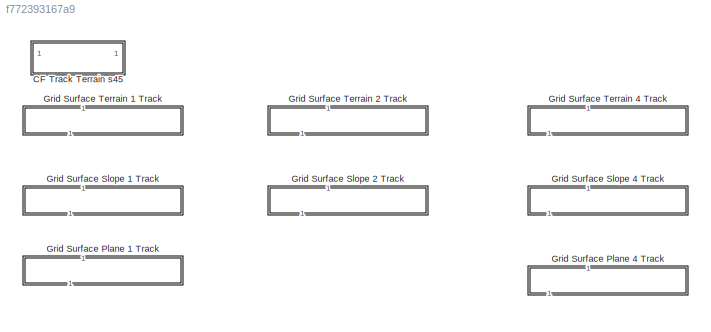
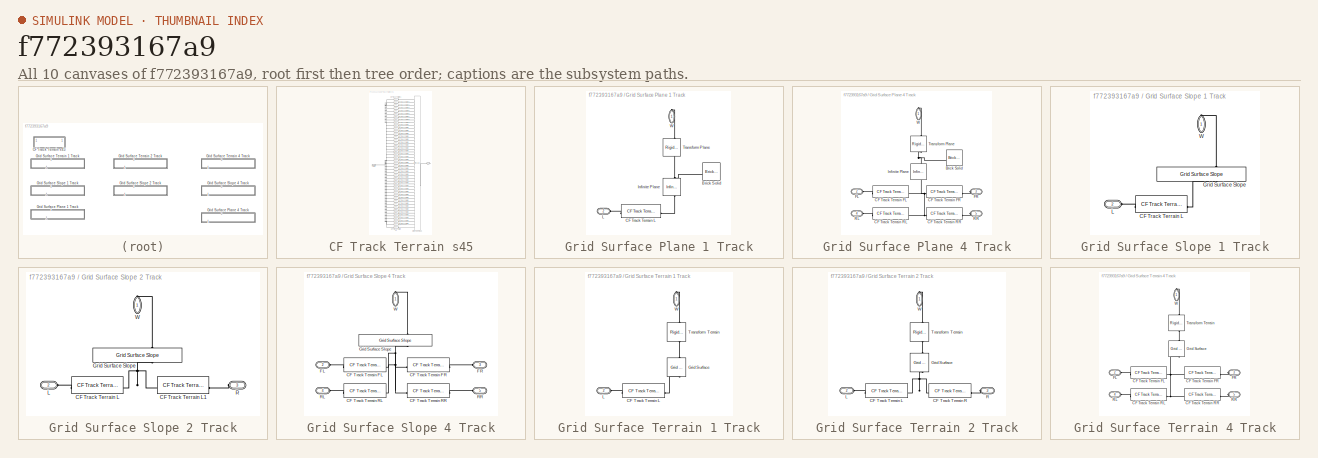
[diagram: thumbnail index - all 10 canvases of the model, root first then tree order]
MODEL slx_f772393167a9
KIND library
CONFIG SolverName = VariableStepAuto
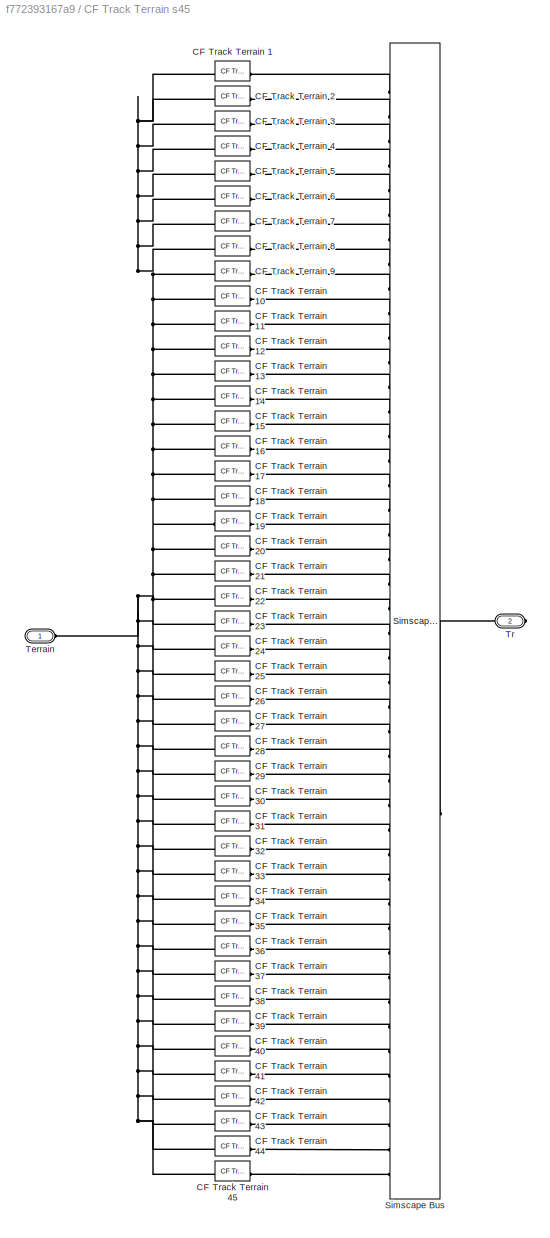
BLOCK [SubSystem] CF Track Terrain s45
BLOCK [Reference] CF Track Terrain s45/CF Track Terrain 1  REF=sm_trackV_lib_terrain_contact_elem/CF Track Terrain
  LibrarySourceBlock = sm_chain_drive_lib/CF_Road
  NameLocation = right
  SourceBlock = sm_trackV_lib_terrain_contact_elem/CF Track Terrain
  SourceType = Contact Force, Track Segment to Terrain
BLOCK [Reference] CF Track Terrain s45/CF Track Terrain 10  REF=sm_trackV_lib_terrain_contact_elem/CF Track Terrain
  LibrarySourceBlock = sm_chain_drive_lib/CF_Road
  NameLocation = right
  SourceBlock = sm_trackV_lib_terrain_contact_elem/CF Track Terrain
  SourceType = Contact Force, Track Segment to Terrain
BLOCK [Reference] CF Track Terrain s45/CF Track Terrain 11  REF=sm_trackV_lib_terrain_contact_elem/CF Track Terrain
  LibrarySourceBlock = sm_chain_drive_lib/CF_Road
  NameLocation = right
  SourceBlock = sm_trackV_lib_terrain_contact_elem/CF Track Terrain
  SourceType = Contact Force, Track Segment to Terrain
BLOCK [Reference] CF Track Terrain s45/CF Track Terrain 12  REF=sm_trackV_lib_terrain_contact_elem/CF Track Terrain
  LibrarySourceBlock = sm_chain_drive_lib/CF_Road
  NameLocation = right
  SourceBlock = sm_trackV_lib_terrain_contact_elem/CF Track Terrain
  SourceType = Contact Force, Track Segment to Terrain
BLOCK [Reference] CF Track Terrain s45/CF Track Terrain 13  REF=sm_trackV_lib_terrain_contact_elem/CF Track Terrain
  LibrarySourceBlock = sm_chain_drive_lib/CF_Road
  NameLocation = right
  SourceBlock = sm_trackV_lib_terrain_contact_elem/CF Track Terrain
  SourceType = Contact Force, Track Segment to Terrain
BLOCK [Reference] CF Track Terrain s45/CF Track Terrain 14  REF=sm_trackV_lib_terrain_contact_elem/CF Track Terrain
  LibrarySourceBlock = sm_chain_drive_lib/CF_Road
  NameLocation = right
  SourceBlock = sm_trackV_lib_terrain_contact_elem/CF Track Terrain
  SourceType = Contact Force, Track Segment to Terrain
BLOCK [Reference] CF Track Terrain s45/CF Track Terrain 15  REF=sm_trackV_lib_terrain_contact_elem/CF Track Terrain
  LibrarySourceBlock = sm_chain_drive_lib/CF_Road
  NameLocation = right
  SourceBlock = sm_trackV_lib_terrain_contact_elem/CF Track Terrain
  SourceType = Contact Force, Track Segment to Terrain
BLOCK [Reference] CF Track Terrain s45/CF Track Terrain 16  REF=sm_trackV_lib_terrain_contact_elem/CF Track Terrain
  LibrarySourceBlock = sm_chain_drive_lib/CF_Road
  NameLocation = right
  SourceBlock = sm_trackV_lib_terrain_contact_elem/CF Track Terrain
  SourceType = Contact Force, Track Segment to Terrain
BLOCK [Reference] CF Track Terrain s45/CF Track Terrain 17  REF=sm_trackV_lib_terrain_contact_elem/CF Track Terrain
  LibrarySourceBlock = sm_chain_drive_lib/CF_Road
  NameLocation = right
  SourceBlock = sm_trackV_lib_terrain_contact_elem/CF Track Terrain
  SourceType = Contact Force, Track Segment to Terrain
BLOCK [Reference] CF Track Terrain s45/CF Track Terrain 18  REF=sm_trackV_lib_terrain_contact_elem/CF Track Terrain
  LibrarySourceBlock = sm_chain_drive_lib/CF_Road
  NameLocation = right
  SourceBlock = sm_trackV_lib_terrain_contact_elem/CF Track Terrain
  SourceType = Contact Force, Track Segment to Terrain
BLOCK [Reference] CF Track Terrain s45/CF Track Terrain 19  REF=sm_trackV_lib_terrain_contact_elem/CF Track Terrain
  LibrarySourceBlock = sm_chain_drive_lib/CF_Road
  NameLocation = right
  SourceBlock = sm_trackV_lib_terrain_contact_elem/CF Track Terrain
  SourceType = Contact Force, Track Segment to Terrain
BLOCK [Reference] CF Track Terrain s45/CF Track Terrain 2  REF=sm_trackV_lib_terrain_contact_elem/CF Track Terrain
  LibrarySourceBlock = sm_chain_drive_lib/CF_Road
  NameLocation = right
  SourceBlock = sm_trackV_lib_terrain_contact_elem/CF Track Terrain
  SourceType = Contact Force, Track Segment to Terrain
BLOCK [Reference] CF Track Terrain s45/CF Track Terrain 20  REF=sm_trackV_lib_terrain_contact_elem/CF Track Terrain
  LibrarySourceBlock = sm_chain_drive_lib/CF_Road
  NameLocation = right
  SourceBlock = sm_trackV_lib_terrain_contact_elem/CF Track Terrain
  SourceType = Contact Force, Track Segment to Terrain
BLOCK [Reference] CF Track Terrain s45/CF Track Terrain 21  REF=sm_trackV_lib_terrain_contact_elem/CF Track Terrain
  LibrarySourceBlock = sm_chain_drive_lib/CF_Road
  NameLocation = right
  SourceBlock = sm_trackV_lib_terrain_contact_elem/CF Track Terrain
  SourceType = Contact Force, Track Segment to Terrain
BLOCK [Reference] CF Track Terrain s45/CF Track Terrain 22  REF=sm_trackV_lib_terrain_contact_elem/CF Track Terrain
  LibrarySourceBlock = sm_chain_drive_lib/CF_Road
  NameLocation = right
  SourceBlock = sm_trackV_lib_terrain_contact_elem/CF Track Terrain
  SourceType = Contact Force, Track Segment to Terrain
BLOCK [Reference] CF Track Terrain s45/CF Track Terrain 23  REF=sm_trackV_lib_terrain_contact_elem/CF Track Terrain
  LibrarySourceBlock = sm_chain_drive_lib/CF_Road
  NameLocation = right
  SourceBlock = sm_trackV_lib_terrain_contact_elem/CF Track Terrain
  SourceType = Contact Force, Track Segment to Terrain
BLOCK [Reference] CF Track Terrain s45/CF Track Terrain 24  REF=sm_trackV_lib_terrain_contact_elem/CF Track Terrain
  LibrarySourceBlock = sm_chain_drive_lib/CF_Road
  NameLocation = right
  SourceBlock = sm_trackV_lib_terrain_contact_elem/CF Track Terrain
  SourceType = Contact Force, Track Segment to Terrain
BLOCK [Reference] CF Track Terrain s45/CF Track Terrain 25  REF=sm_trackV_lib_terrain_contact_elem/CF Track Terrain
  LibrarySourceBlock = sm_chain_drive_lib/CF_Road
  NameLocation = right
  SourceBlock = sm_trackV_lib_terrain_contact_elem/CF Track Terrain
  SourceType = Contact Force, Track Segment to Terrain
BLOCK [Reference] CF Track Terrain s45/CF Track Terrain 26  REF=sm_trackV_lib_terrain_contact_elem/CF Track Terrain
  LibrarySourceBlock = sm_chain_drive_lib/CF_Road
  NameLocation = right
  SourceBlock = sm_trackV_lib_terrain_contact_elem/CF Track Terrain
  SourceType = Contact Force, Track Segment to Terrain
BLOCK [Reference] CF Track Terrain s45/CF Track Terrain 27  REF=sm_trackV_lib_terrain_contact_elem/CF Track Terrain
  LibrarySourceBlock = sm_chain_drive_lib/CF_Road
  NameLocation = right
  SourceBlock = sm_trackV_lib_terrain_contact_elem/CF Track Terrain
  SourceType = Contact Force, Track Segment to Terrain
BLOCK [Reference] CF Track Terrain s45/CF Track Terrain 28  REF=sm_trackV_lib_terrain_contact_elem/CF Track Terrain
  LibrarySourceBlock = sm_chain_drive_lib/CF_Road
  NameLocation = right
  SourceBlock = sm_trackV_lib_terrain_contact_elem/CF Track Terrain
  SourceType = Contact Force, Track Segment to Terrain
BLOCK [Reference] CF Track Terrain s45/CF Track Terrain 29  REF=sm_trackV_lib_terrain_contact_elem/CF Track Terrain
  LibrarySourceBlock = sm_chain_drive_lib/CF_Road
  NameLocation = right
  SourceBlock = sm_trackV_lib_terrain_contact_elem/CF Track Terrain
  SourceType = Contact Force, Track Segment to Terrain
BLOCK [Reference] CF Track Terrain s45/CF Track Terrain 3  REF=sm_trackV_lib_terrain_contact_elem/CF Track Terrain
  LibrarySourceBlock = sm_chain_drive_lib/CF_Road
  NameLocation = right
  SourceBlock = sm_trackV_lib_terrain_contact_elem/CF Track Terrain
  SourceType = Contact Force, Track Segment to Terrain
BLOCK [Reference] CF Track Terrain s45/CF Track Terrain 30  REF=sm_trackV_lib_terrain_contact_elem/CF Track Terrain
  LibrarySourceBlock = sm_chain_drive_lib/CF_Road
  NameLocation = right
  SourceBlock = sm_trackV_lib_terrain_contact_elem/CF Track Terrain
  SourceType = Contact Force, Track Segment to Terrain
BLOCK [Reference] CF Track Terrain s45/CF Track Terrain 31  REF=sm_trackV_lib_terrain_contact_elem/CF Track Terrain
  LibrarySourceBlock = sm_chain_drive_lib/CF_Road
  NameLocation = right
  SourceBlock = sm_trackV_lib_terrain_contact_elem/CF Track Terrain
  SourceType = Contact Force, Track Segment to Terrain
BLOCK [Reference] CF Track Terrain s45/CF Track Terrain 32  REF=sm_trackV_lib_terrain_contact_elem/CF Track Terrain
  LibrarySourceBlock = sm_chain_drive_lib/CF_Road
  NameLocation = right
  SourceBlock = sm_trackV_lib_terrain_contact_elem/CF Track Terrain
  SourceType = Contact Force, Track Segment to Terrain
BLOCK [Reference] CF Track Terrain s45/CF Track Terrain 33  REF=sm_trackV_lib_terrain_contact_elem/CF Track Terrain
  LibrarySourceBlock = sm_chain_drive_lib/CF_Road
  NameLocation = right
  SourceBlock = sm_trackV_lib_terrain_contact_elem/CF Track Terrain
  SourceType = Contact Force, Track Segment to Terrain
BLOCK [Reference] CF Track Terrain s45/CF Track Terrain 34  REF=sm_trackV_lib_terrain_contact_elem/CF Track Terrain
  LibrarySourceBlock = sm_chain_drive_lib/CF_Road
  NameLocation = right
  SourceBlock = sm_trackV_lib_terrain_contact_elem/CF Track Terrain
  SourceType = Contact Force, Track Segment to Terrain
BLOCK [Reference] CF Track Terrain s45/CF Track Terrain 35  REF=sm_trackV_lib_terrain_contact_elem/CF Track Terrain
  LibrarySourceBlock = sm_chain_drive_lib/CF_Road
  NameLocation = right
  SourceBlock = sm_trackV_lib_terrain_contact_elem/CF Track Terrain
  SourceType = Contact Force, Track Segment to Terrain
BLOCK [Reference] CF Track Terrain s45/CF Track Terrain 36  REF=sm_trackV_lib_terrain_contact_elem/CF Track Terrain
  LibrarySourceBlock = sm_chain_drive_lib/CF_Road
  NameLocation = right
  SourceBlock = sm_trackV_lib_terrain_contact_elem/CF Track Terrain
  SourceType = Contact Force, Track Segment to Terrain
BLOCK [Reference] CF Track Terrain s45/CF Track Terrain 37  REF=sm_trackV_lib_terrain_contact_elem/CF Track Terrain
  LibrarySourceBlock = sm_chain_drive_lib/CF_Road
  NameLocation = right
  SourceBlock = sm_trackV_lib_terrain_contact_elem/CF Track Terrain
  SourceType = Contact Force, Track Segment to Terrain
BLOCK [Reference] CF Track Terrain s45/CF Track Terrain 38  REF=sm_trackV_lib_terrain_contact_elem/CF Track Terrain
  LibrarySourceBlock = sm_chain_drive_lib/CF_Road
  NameLocation = right
  SourceBlock = sm_trackV_lib_terrain_contact_elem/CF Track Terrain
  SourceType = Contact Force, Track Segment to Terrain
BLOCK [Reference] CF Track Terrain s45/CF Track Terrain 39  REF=sm_trackV_lib_terrain_contact_elem/CF Track Terrain
  LibrarySourceBlock = sm_chain_drive_lib/CF_Road
  NameLocation = right
  SourceBlock = sm_trackV_lib_terrain_contact_elem/CF Track Terrain
  SourceType = Contact Force, Track Segment to Terrain
BLOCK [Reference] CF Track Terrain s45/CF Track Terrain 4  REF=sm_trackV_lib_terrain_contact_elem/CF Track Terrain
  LibrarySourceBlock = sm_chain_drive_lib/CF_Road
  NameLocation = right
  SourceBlock = sm_trackV_lib_terrain_contact_elem/CF Track Terrain
  SourceType = Contact Force, Track Segment to Terrain
BLOCK [Reference] CF Track Terrain s45/CF Track Terrain 40  REF=sm_trackV_lib_terrain_contact_elem/CF Track Terrain
  LibrarySourceBlock = sm_chain_drive_lib/CF_Road
  NameLocation = right
  SourceBlock = sm_trackV_lib_terrain_contact_elem/CF Track Terrain
  SourceType = Contact Force, Track Segment to Terrain
BLOCK [Reference] CF Track Terrain s45/CF Track Terrain 41  REF=sm_trackV_lib_terrain_contact_elem/CF Track Terrain
  LibrarySourceBlock = sm_chain_drive_lib/CF_Road
  NameLocation = right
  SourceBlock = sm_trackV_lib_terrain_contact_elem/CF Track Terrain
  SourceType = Contact Force, Track Segment to Terrain
BLOCK [Reference] CF Track Terrain s45/CF Track Terrain 42  REF=sm_trackV_lib_terrain_contact_elem/CF Track Terrain
  LibrarySourceBlock = sm_chain_drive_lib/CF_Road
  NameLocation = right
  SourceBlock = sm_trackV_lib_terrain_contact_elem/CF Track Terrain
  SourceType = Contact Force, Track Segment to Terrain
BLOCK [Reference] CF Track Terrain s45/CF Track Terrain 43  REF=sm_trackV_lib_terrain_contact_elem/CF Track Terrain
  LibrarySourceBlock = sm_chain_drive_lib/CF_Road
  NameLocation = right
  SourceBlock = sm_trackV_lib_terrain_contact_elem/CF Track Terrain
  SourceType = Contact Force, Track Segment to Terrain
BLOCK [Reference] CF Track Terrain s45/CF Track Terrain 44  REF=sm_trackV_lib_terrain_contact_elem/CF Track Terrain
  LibrarySourceBlock = sm_chain_drive_lib/CF_Road
  NameLocation = right
  SourceBlock = sm_trackV_lib_terrain_contact_elem/CF Track Terrain
  SourceType = Contact Force, Track Segment to Terrain
BLOCK [Reference] CF Track Terrain s45/CF Track Terrain 45  REF=sm_trackV_lib_terrain_contact_elem/CF Track Terrain
  LibrarySourceBlock = sm_chain_drive_lib/CF_Road
  NameLocation = right
  SourceBlock = sm_trackV_lib_terrain_contact_elem/CF Track Terrain
  SourceType = Contact Force, Track Segment to Terrain
BLOCK [Reference] CF Track Terrain s45/CF Track Terrain 5  REF=sm_trackV_lib_terrain_contact_elem/CF Track Terrain
  LibrarySourceBlock = sm_chain_drive_lib/CF_Road
  NameLocation = right
  SourceBlock = sm_trackV_lib_terrain_contact_elem/CF Track Terrain
  SourceType = Contact Force, Track Segment to Terrain
BLOCK [Reference] CF Track Terrain s45/CF Track Terrain 6  REF=sm_trackV_lib_terrain_contact_elem/CF Track Terrain
  LibrarySourceBlock = sm_chain_drive_lib/CF_Road
  NameLocation = right
  SourceBlock = sm_trackV_lib_terrain_contact_elem/CF Track Terrain
  SourceType = Contact Force, Track Segment to Terrain
BLOCK [Reference] CF Track Terrain s45/CF Track Terrain 7  REF=sm_trackV_lib_terrain_contact_elem/CF Track Terrain
  LibrarySourceBlock = sm_chain_drive_lib/CF_Road
  NameLocation = right
  SourceBlock = sm_trackV_lib_terrain_contact_elem/CF Track Terrain
  SourceType = Contact Force, Track Segment to Terrain
BLOCK [Reference] CF Track Terrain s45/CF Track Terrain 8  REF=sm_trackV_lib_terrain_contact_elem/CF Track Terrain
  LibrarySourceBlock = sm_chain_drive_lib/CF_Road
  NameLocation = right
  SourceBlock = sm_trackV_lib_terrain_contact_elem/CF Track Terrain
  SourceType = Contact Force, Track Segment to Terrain
BLOCK [Reference] CF Track Terrain s45/CF Track Terrain 9  REF=sm_trackV_lib_terrain_contact_elem/CF Track Terrain
  LibrarySourceBlock = sm_chain_drive_lib/CF_Road
  NameLocation = right
  SourceBlock = sm_trackV_lib_terrain_contact_elem/CF Track Terrain
  SourceType = Contact Force, Track Segment to Terrain
BLOCK [SimscapeBus] CF Track Terrain s45/Simscape Bus
  ConnectionType = Bus: CBO_Seg45
  HierarchyStrings = L1;L2;L3;L4;L5;L6;L7;L8;L9;L10;L11;L12;L13;L14;L15;L16;L17;L18;L19;L20;L21;L22;L23;L24;L25;L26;L27;L28;L29;L30;L31;L32;L33;L34;L35;L36;L37;L38;L39;L40;L41;L42;L43;L44;L45
BLOCK [PMIOPort] CF Track Terrain s45/Terrain
  Side = Left
BLOCK [PMIOPort] CF Track Terrain s45/Tr
  NameLocation = top
  Port = 2
  Side = Right
BLOCK [SubSystem] Grid Surface Plane 1 Track
  NameLocation = right
BLOCK [Reference] Grid Surface Plane 1 Track/Brick Solid  REF=sm_lib/Body Elements/Brick Solid
  NameLocation = top
  SourceBlock = sm_lib/Body Elements/Brick Solid
  SourceType = Brick Solid
BLOCK [Reference] Grid Surface Plane 1 Track/CF Track Terrain L  REF=$bdroot/CF Track Terrain s45
  SourceBlock = $bdroot/CF Track Terrain s45
  SourceType = Contact Forces, Full Track to Terrain
BLOCK [Reference] Grid Surface Plane 1 Track/Infinite Plane  REF=sm_lib/Curves and Surfaces/Infinite Plane
  NameLocation = right
  SourceBlock = sm_lib/Curves and Surfaces/Infinite Plane
  SourceType = Infinite Plane
BLOCK [PMIOPort] Grid Surface Plane 1 Track/L
  Port = 2
  Side = Left
BLOCK [Reference] Grid Surface Plane 1 Track/Transform Plane  REF=sm_lib/Frames and
Transforms/Rigid
Transform
  NameLocation = left
  SourceBlock = sm_lib/Frames and\nTransforms/Rigid\nTransform
  SourceType = Rigid\nTransform
BLOCK [PMIOPort] Grid Surface Plane 1 Track/W
  NameLocation = right
  Side = Right
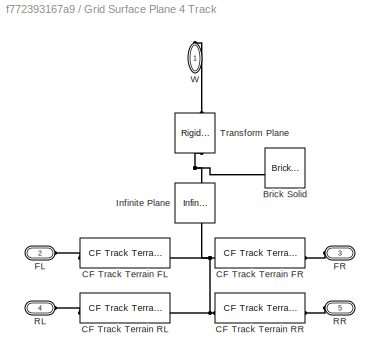
BLOCK [SubSystem] Grid Surface Plane 4 Track
  NameLocation = right
BLOCK [Reference] Grid Surface Plane 4 Track/Brick Solid  REF=sm_lib/Body Elements/Brick Solid
  NameLocation = top
  SourceBlock = sm_lib/Body Elements/Brick Solid
  SourceType = Brick Solid
BLOCK [Reference] Grid Surface Plane 4 Track/CF Track Terrain FL  REF=$bdroot/CF Track Terrain s45
  SourceBlock = $bdroot/CF Track Terrain s45
  SourceType = Contact Forces, Full Track to Terrain
BLOCK [Reference] Grid Surface Plane 4 Track/CF Track Terrain FR  REF=$bdroot/CF Track Terrain s45
  SourceBlock = $bdroot/CF Track Terrain s45
  SourceType = Contact Forces, Full Track to Terrain
BLOCK [Reference] Grid Surface Plane 4 Track/CF Track Terrain RL  REF=$bdroot/CF Track Terrain s45
  SourceBlock = $bdroot/CF Track Terrain s45
  SourceType = Contact Forces, Full Track to Terrain
BLOCK [Reference] Grid Surface Plane 4 Track/CF Track Terrain RR  REF=$bdroot/CF Track Terrain s45
  SourceBlock = $bdroot/CF Track Terrain s45
  SourceType = Contact Forces, Full Track to Terrain
BLOCK [PMIOPort] Grid Surface Plane 4 Track/FL
  Port = 2
  Side = Left
BLOCK [PMIOPort] Grid Surface Plane 4 Track/FR
  Port = 3
  Side = Left
BLOCK [Reference] Grid Surface Plane 4 Track/Infinite Plane  REF=sm_lib/Curves and Surfaces/Infinite Plane
  NameLocation = right
  SourceBlock = sm_lib/Curves and Surfaces/Infinite Plane
  SourceType = Infinite Plane
BLOCK [PMIOPort] Grid Surface Plane 4 Track/RL
  Port = 4
  Side = Left
BLOCK [PMIOPort] Grid Surface Plane 4 Track/RR
  Port = 5
  Side = Left
BLOCK [Reference] Grid Surface Plane 4 Track/Transform Plane  REF=sm_lib/Frames and
Transforms/Rigid
Transform
  NameLocation = right
  SourceBlock = sm_lib/Frames and\nTransforms/Rigid\nTransform
  SourceType = Rigid\nTransform
BLOCK [PMIOPort] Grid Surface Plane 4 Track/W
  NameLocation = right
  Side = Right
BLOCK [SubSystem] Grid Surface Slope 1 Track
  NameLocation = right
BLOCK [Reference] Grid Surface Slope 1 Track/CF Track Terrain L  REF=$bdroot/CF Track Terrain s45
  SourceBlock = $bdroot/CF Track Terrain s45
  SourceType = Contact Forces, Full Track to Terrain
BLOCK [Reference] Grid Surface Slope 1 Track/Grid Surface Slope  REF=sm_excv_scene_lib/Grid Surface  (lib defined in slx_1cf3237a0358)
Slope
  NameLocation = right
  SourceBlock = sm_excv_scene_lib/Grid Surface\nSlope
  SourceType = Slope
BLOCK [PMIOPort] Grid Surface Slope 1 Track/L
  Port = 2
  Side = Left
BLOCK [PMIOPort] Grid Surface Slope 1 Track/W
  NameLocation = left
  Side = Right
BLOCK [SubSystem] Grid Surface Slope 2 Track
  NameLocation = right
BLOCK [Reference] Grid Surface Slope 2 Track/CF Track Terrain L  REF=$bdroot/CF Track Terrain s45
  SourceBlock = $bdroot/CF Track Terrain s45
  SourceType = Contact Forces, Full Track to Terrain
BLOCK [Reference] Grid Surface Slope 2 Track/CF Track Terrain L1  REF=$bdroot/CF Track Terrain s45
  SourceBlock = $bdroot/CF Track Terrain s45
  SourceType = Contact Forces, Full Track to Terrain
BLOCK [Reference] Grid Surface Slope 2 Track/Grid Surface Slope  REF=sm_excv_scene_lib/Grid Surface  (lib defined in slx_1cf3237a0358)
Slope
  NameLocation = right
  SourceBlock = sm_excv_scene_lib/Grid Surface\nSlope
  SourceType = Slope
BLOCK [PMIOPort] Grid Surface Slope 2 Track/L
  Port = 2
  Side = Left
BLOCK [PMIOPort] Grid Surface Slope 2 Track/R
  Port = 3
  Side = Left
BLOCK [PMIOPort] Grid Surface Slope 2 Track/W
  NameLocation = left
  Side = Right
BLOCK [SubSystem] Grid Surface Slope 4 Track
  NameLocation = right
BLOCK [Reference] Grid Surface Slope 4 Track/CF Track Terrain FL  REF=$bdroot/CF Track Terrain s45
  SourceBlock = $bdroot/CF Track Terrain s45
  SourceType = Contact Forces, Full Track to Terrain
BLOCK [Reference] Grid Surface Slope 4 Track/CF Track Terrain FR  REF=$bdroot/CF Track Terrain s45
  SourceBlock = $bdroot/CF Track Terrain s45
  SourceType = Contact Forces, Full Track to Terrain
BLOCK [Reference] Grid Surface Slope 4 Track/CF Track Terrain RL  REF=$bdroot/CF Track Terrain s45
  SourceBlock = $bdroot/CF Track Terrain s45
  SourceType = Contact Forces, Full Track to Terrain
BLOCK [Reference] Grid Surface Slope 4 Track/CF Track Terrain RR  REF=$bdroot/CF Track Terrain s45
  SourceBlock = $bdroot/CF Track Terrain s45
  SourceType = Contact Forces, Full Track to Terrain
BLOCK [PMIOPort] Grid Surface Slope 4 Track/FL
  Port = 2
  Side = Left
BLOCK [PMIOPort] Grid Surface Slope 4 Track/FR
  Port = 3
  Side = Left
BLOCK [Reference] Grid Surface Slope 4 Track/Grid Surface Slope  REF=sm_excv_scene_lib/Grid Surface  (lib defined in slx_1cf3237a0358)
Slope
  NameLocation = right
  SourceBlock = sm_excv_scene_lib/Grid Surface\nSlope
  SourceType = Slope
BLOCK [PMIOPort] Grid Surface Slope 4 Track/RL
  Port = 4
  Side = Left
BLOCK [PMIOPort] Grid Surface Slope 4 Track/RR
  Port = 5
  Side = Left
BLOCK [PMIOPort] Grid Surface Slope 4 Track/W
  NameLocation = left
  Side = Right
BLOCK [SubSystem] Grid Surface Terrain 1 Track
  NameLocation = right
BLOCK [Reference] Grid Surface Terrain 1 Track/CF Track Terrain L  REF=$bdroot/CF Track Terrain s45
  SourceBlock = $bdroot/CF Track Terrain s45
  SourceType = Contact Forces, Full Track to Terrain
BLOCK [Reference] Grid Surface Terrain 1 Track/Grid Surface  REF=sm_lib/Curves and Surfaces/Grid Surface
  NameLocation = right
  SourceBlock = sm_lib/Curves and Surfaces/Grid Surface
  SourceType = Grid Surface
BLOCK [PMIOPort] Grid Surface Terrain 1 Track/L
  Port = 2
  Side = Left
BLOCK [Reference] Grid Surface Terrain 1 Track/Transform Terrain  REF=sm_lib/Frames and
Transforms/Rigid
Transform
  NameLocation = left
  SourceBlock = sm_lib/Frames and\nTransforms/Rigid\nTransform
  SourceType = Rigid\nTransform
BLOCK [PMIOPort] Grid Surface Terrain 1 Track/W
  NameLocation = right
  Side = Right
BLOCK [SubSystem] Grid Surface Terrain 2 Track
  NameLocation = right
BLOCK [Reference] Grid Surface Terrain 2 Track/CF Track Terrain L  REF=$bdroot/CF Track Terrain s45
  SourceBlock = $bdroot/CF Track Terrain s45
  SourceType = Contact Forces, Full Track to Terrain
BLOCK [Reference] Grid Surface Terrain 2 Track/CF Track Terrain R  REF=$bdroot/CF Track Terrain s45
  SourceBlock = $bdroot/CF Track Terrain s45
  SourceType = Contact Forces, Full Track to Terrain
BLOCK [Reference] Grid Surface Terrain 2 Track/Grid Surface  REF=sm_lib/Curves and Surfaces/Grid Surface
  NameLocation = left
  SourceBlock = sm_lib/Curves and Surfaces/Grid Surface
  SourceType = Grid Surface
BLOCK [PMIOPort] Grid Surface Terrain 2 Track/L
  Port = 2
  Side = Left
BLOCK [PMIOPort] Grid Surface Terrain 2 Track/R
  Port = 3
  Side = Left
BLOCK [Reference] Grid Surface Terrain 2 Track/Transform Terrain  REF=sm_lib/Frames and
Transforms/Rigid
Transform
  NameLocation = left
  SourceBlock = sm_lib/Frames and\nTransforms/Rigid\nTransform
  SourceType = Rigid\nTransform
BLOCK [PMIOPort] Grid Surface Terrain 2 Track/W
  NameLocation = right
  Side = Right
BLOCK [SubSystem] Grid Surface Terrain 4 Track
  NameLocation = right
BLOCK [Reference] Grid Surface Terrain 4 Track/CF Track Terrain FL  REF=$bdroot/CF Track Terrain s45
  SourceBlock = $bdroot/CF Track Terrain s45
  SourceType = Contact Forces, Full Track to Terrain
BLOCK [Reference] Grid Surface Terrain 4 Track/CF Track Terrain FR  REF=$bdroot/CF Track Terrain s45
  SourceBlock = $bdroot/CF Track Terrain s45
  SourceType = Contact Forces, Full Track to Terrain
BLOCK [Reference] Grid Surface Terrain 4 Track/CF Track Terrain RL  REF=$bdroot/CF Track Terrain s45
  SourceBlock = $bdroot/CF Track Terrain s45
  SourceType = Contact Forces, Full Track to Terrain
BLOCK [Reference] Grid Surface Terrain 4 Track/CF Track Terrain RR  REF=$bdroot/CF Track Terrain s45
  SourceBlock = $bdroot/CF Track Terrain s45
  SourceType = Contact Forces, Full Track to Terrain
BLOCK [PMIOPort] Grid Surface Terrain 4 Track/FL
  Port = 2
  Side = Left
BLOCK [PMIOPort] Grid Surface Terrain 4 Track/FR
  Port = 3
  Side = Left
BLOCK [Reference] Grid Surface Terrain 4 Track/Grid Surface  REF=sm_lib/Curves and Surfaces/Grid Surface
  NameLocation = left
  SourceBlock = sm_lib/Curves and Surfaces/Grid Surface
  SourceType = Grid Surface
BLOCK [PMIOPort] Grid Surface Terrain 4 Track/RL
  Port = 4
  Side = Left
BLOCK [PMIOPort] Grid Surface Terrain 4 Track/RR
  Port = 5
  Side = Left
BLOCK [Reference] Grid Surface Terrain 4 Track/Transform Terrain  REF=sm_lib/Frames and
Transforms/Rigid
Transform
  NameLocation = left
  SourceBlock = sm_lib/Frames and\nTransforms/Rigid\nTransform
  SourceType = Rigid\nTransform
BLOCK [PMIOPort] Grid Surface Terrain 4 Track/W
  NameLocation = right
  Side = Right
PNET net1: CF Track Terrain s45/CF Track Terrain 10:LConn1 -- CF Track Terrain s45/CF Track Terrain 11:LConn1 -- CF Track Terrain s45/CF Track Terrain 12:LConn1 -- CF Track Terrain s45/CF Track Terrain 13:LConn1 -- CF Track Terrain s45/CF Track Terrain 14:LConn1 -- CF Track Terrain s45/CF Track Terrain 15:LConn1 -- CF Track Terrain s45/CF Track Terrain 16:LConn1 -- CF Track Terrain s45/CF Track Terrain 17:LConn1 -- CF Track Terrain s45/CF Track Terrain 18:LConn1 -- CF Track Terrain s45/CF Track Terrain 19:LConn1 -- CF Track Terrain s45/CF Track Terrain 1:LConn1 -- CF Track Terrain s45/CF Track Terrain 20:LConn1 -- CF Track Terrain s45/CF Track Terrain 21:LConn1 -- CF Track Terrain s45/CF Track Terrain 22:LConn1 -- CF Track Terrain s45/CF Track Terrain 23:LConn1 -- CF Track Terrain s45/CF Track Terrain 24:LConn1 -- CF Track Terrain s45/CF Track Terrain 25:LConn1 -- CF Track Terrain s45/CF Track Terrain 26:LConn1 -- CF Track Terrain s45/CF Track Terrain 27:LConn1 -- CF Track Terrain s45/CF Track Terrain 28:LConn1 -- CF Track Terrain s45/CF Track Terrain 29:LConn1 -- CF Track Terrain s45/CF Track Terrain 2:LConn1 -- CF Track Terrain s45/CF Track Terrain 30:LConn1 -- CF Track Terrain s45/CF Track Terrain 31:LConn1 -- CF Track Terrain s45/CF Track Terrain 32:LConn1 -- CF Track Terrain s45/CF Track Terrain 33:LConn1 -- CF Track Terrain s45/CF Track Terrain 34:LConn1 -- CF Track Terrain s45/CF Track Terrain 35:LConn1 -- CF Track Terrain s45/CF Track Terrain 36:LConn1 -- CF Track Terrain s45/CF Track Terrain 37:LConn1 -- CF Track Terrain s45/CF Track Terrain 38:LConn1 -- CF Track Terrain s45/CF Track Terrain 39:LConn1 -- CF Track Terrain s45/CF Track Terrain 3:LConn1 -- CF Track Terrain s45/CF Track Terrain 40:LConn1 -- CF Track Terrain s45/CF Track Terrain 41:LConn1 -- CF Track Terrain s45/CF Track Terrain 42:LConn1 -- CF Track Terrain s45/CF Track Terrain 43:LConn1 -- CF Track Terrain s45/CF Track Terrain 44:LConn1 -- CF Track Terrain s45/CF Track Terrain 45:LConn1 -- CF Track Terrain s45/CF Track Terrain 4:LConn1 -- CF Track Terrain s45/CF Track Terrain 5:LConn1 -- CF Track Terrain s45/CF Track Terrain 6:LConn1 -- CF Track Terrain s45/CF Track Terrain 7:LConn1 -- CF Track Terrain s45/CF Track Terrain 8:LConn1 -- CF Track Terrain s45/CF Track Terrain 9:LConn1 -- CF Track Terrain s45/Terrain:RConn1
PLINE CF Track Terrain s45/CF Track Terrain 10:RConn1 -- CF Track Terrain s45/Simscape Bus:LConn10
PLINE CF Track Terrain s45/CF Track Terrain 11:RConn1 -- CF Track Terrain s45/Simscape Bus:LConn11
PLINE CF Track Terrain s45/CF Track Terrain 12:RConn1 -- CF Track Terrain s45/Simscape Bus:LConn12
PLINE CF Track Terrain s45/CF Track Terrain 13:RConn1 -- CF Track Terrain s45/Simscape Bus:LConn13
PLINE CF Track Terrain s45/CF Track Terrain 14:RConn1 -- CF Track Terrain s45/Simscape Bus:LConn14
PLINE CF Track Terrain s45/CF Track Terrain 15:RConn1 -- CF Track Terrain s45/Simscape Bus:LConn15
PLINE CF Track Terrain s45/CF Track Terrain 16:RConn1 -- CF Track Terrain s45/Simscape Bus:LConn16
PLINE CF Track Terrain s45/CF Track Terrain 17:RConn1 -- CF Track Terrain s45/Simscape Bus:LConn17
PLINE CF Track Terrain s45/CF Track Terrain 18:RConn1 -- CF Track Terrain s45/Simscape Bus:LConn18
PLINE CF Track Terrain s45/CF Track Terrain 19:RConn1 -- CF Track Terrain s45/Simscape Bus:LConn19
PLINE CF Track Terrain s45/CF Track Terrain 1:RConn1 -- CF Track Terrain s45/Simscape Bus:LConn1
PLINE CF Track Terrain s45/CF Track Terrain 20:RConn1 -- CF Track Terrain s45/Simscape Bus:LConn20
PLINE CF Track Terrain s45/CF Track Terrain 21:RConn1 -- CF Track Terrain s45/Simscape Bus:LConn21
PLINE CF Track Terrain s45/CF Track Terrain 22:RConn1 -- CF Track Terrain s45/Simscape Bus:LConn22
PLINE CF Track Terrain s45/CF Track Terrain 23:RConn1 -- CF Track Terrain s45/Simscape Bus:LConn23
PLINE CF Track Terrain s45/CF Track Terrain 24:RConn1 -- CF Track Terrain s45/Simscape Bus:LConn24
PLINE CF Track Terrain s45/CF Track Terrain 25:RConn1 -- CF Track Terrain s45/Simscape Bus:LConn25
PLINE CF Track Terrain s45/CF Track Terrain 26:RConn1 -- CF Track Terrain s45/Simscape Bus:LConn26
PLINE CF Track Terrain s45/CF Track Terrain 27:RConn1 -- CF Track Terrain s45/Simscape Bus:LConn27
PLINE CF Track Terrain s45/CF Track Terrain 28:RConn1 -- CF Track Terrain s45/Simscape Bus:LConn28
PLINE CF Track Terrain s45/CF Track Terrain 29:RConn1 -- CF Track Terrain s45/Simscape Bus:LConn29
PLINE CF Track Terrain s45/CF Track Terrain 2:RConn1 -- CF Track Terrain s45/Simscape Bus:LConn2
PLINE CF Track Terrain s45/CF Track Terrain 30:RConn1 -- CF Track Terrain s45/Simscape Bus:LConn30
PLINE CF Track Terrain s45/CF Track Terrain 31:RConn1 -- CF Track Terrain s45/Simscape Bus:LConn31
PLINE CF Track Terrain s45/CF Track Terrain 32:RConn1 -- CF Track Terrain s45/Simscape Bus:LConn32
PLINE CF Track Terrain s45/CF Track Terrain 33:RConn1 -- CF Track Terrain s45/Simscape Bus:LConn33
PLINE CF Track Terrain s45/CF Track Terrain 34:RConn1 -- CF Track Terrain s45/Simscape Bus:LConn34
PLINE CF Track Terrain s45/CF Track Terrain 35:RConn1 -- CF Track Terrain s45/Simscape Bus:LConn35
PLINE CF Track Terrain s45/CF Track Terrain 36:RConn1 -- CF Track Terrain s45/Simscape Bus:LConn36
PLINE CF Track Terrain s45/CF Track Terrain 37:RConn1 -- CF Track Terrain s45/Simscape Bus:LConn37
PLINE CF Track Terrain s45/CF Track Terrain 38:RConn1 -- CF Track Terrain s45/Simscape Bus:LConn38
PLINE CF Track Terrain s45/CF Track Terrain 39:RConn1 -- CF Track Terrain s45/Simscape Bus:LConn39
PLINE CF Track Terrain s45/CF Track Terrain 3:RConn1 -- CF Track Terrain s45/Simscape Bus:LConn3
PLINE CF Track Terrain s45/CF Track Terrain 40:RConn1 -- CF Track Terrain s45/Simscape Bus:LConn40
PLINE CF Track Terrain s45/CF Track Terrain 41:RConn1 -- CF Track Terrain s45/Simscape Bus:LConn41
PLINE CF Track Terrain s45/CF Track Terrain 42:RConn1 -- CF Track Terrain s45/Simscape Bus:LConn42
PLINE CF Track Terrain s45/CF Track Terrain 43:RConn1 -- CF Track Terrain s45/Simscape Bus:LConn43
PLINE CF Track Terrain s45/CF Track Terrain 44:RConn1 -- CF Track Terrain s45/Simscape Bus:LConn44
PLINE CF Track Terrain s45/CF Track Terrain 45:RConn1 -- CF Track Terrain s45/Simscape Bus:LConn45
PLINE CF Track Terrain s45/CF Track Terrain 4:RConn1 -- CF Track Terrain s45/Simscape Bus:LConn4
PLINE CF Track Terrain s45/CF Track Terrain 5:RConn1 -- CF Track Terrain s45/Simscape Bus:LConn5
PLINE CF Track Terrain s45/CF Track Terrain 6:RConn1 -- CF Track Terrain s45/Simscape Bus:LConn6
PLINE CF Track Terrain s45/CF Track Terrain 7:RConn1 -- CF Track Terrain s45/Simscape Bus:LConn7
PLINE CF Track Terrain s45/CF Track Terrain 8:RConn1 -- CF Track Terrain s45/Simscape Bus:LConn8
PLINE CF Track Terrain s45/CF Track Terrain 9:RConn1 -- CF Track Terrain s45/Simscape Bus:LConn9
PLINE CF Track Terrain s45/Simscape Bus:RConn1 -- CF Track Terrain s45/Tr:RConn1
PNET net2: Grid Surface Plane 1 Track/Brick Solid:LConn1 -- Grid Surface Plane 1 Track/Infinite Plane:LConn1 -- Grid Surface Plane 1 Track/Transform Plane:RConn1
PLINE Grid Surface Plane 1 Track/CF Track Terrain L:LConn1 -- Grid Surface Plane 1 Track/Infinite Plane:RConn1
PLINE Grid Surface Plane 1 Track/CF Track Terrain L:RConn1 -- Grid Surface Plane 1 Track/L:RConn1
PLINE Grid Surface Plane 1 Track/Transform Plane:LConn1 -- Grid Surface Plane 1 Track/W:RConn1
PNET net3: Grid Surface Plane 4 Track/Brick Solid:LConn1 -- Grid Surface Plane 4 Track/Infinite Plane:LConn1 -- Grid Surface Plane 4 Track/Transform Plane:RConn1
PNET net4: Grid Surface Plane 4 Track/CF Track Terrain FL:LConn1 -- Grid Surface Plane 4 Track/CF Track Terrain FR:LConn1 -- Grid Surface Plane 4 Track/CF Track Terrain RL:LConn1 -- Grid Surface Plane 4 Track/CF Track Terrain RR:LConn1 -- Grid Surface Plane 4 Track/Infinite Plane:RConn1
PLINE Grid Surface Plane 4 Track/CF Track Terrain FL:RConn1 -- Grid Surface Plane 4 Track/FL:RConn1
PLINE Grid Surface Plane 4 Track/CF Track Terrain FR:RConn1 -- Grid Surface Plane 4 Track/FR:RConn1
PLINE Grid Surface Plane 4 Track/CF Track Terrain RL:RConn1 -- Grid Surface Plane 4 Track/RL:RConn1
PLINE Grid Surface Plane 4 Track/CF Track Terrain RR:RConn1 -- Grid Surface Plane 4 Track/RR:RConn1
PLINE Grid Surface Plane 4 Track/Transform Plane:LConn1 -- Grid Surface Plane 4 Track/W:RConn1
PLINE Grid Surface Slope 1 Track/CF Track Terrain L:LConn1 -- Grid Surface Slope 1 Track/Grid Surface Slope:LConn1
PLINE Grid Surface Slope 1 Track/CF Track Terrain L:RConn1 -- Grid Surface Slope 1 Track/L:RConn1
PLINE Grid Surface Slope 1 Track/Grid Surface Slope:RConn1 -- Grid Surface Slope 1 Track/W:RConn1
PNET net5: Grid Surface Slope 2 Track/CF Track Terrain L1:LConn1 -- Grid Surface Slope 2 Track/CF Track Terrain L:LConn1 -- Grid Surface Slope 2 Track/Grid Surface Slope:LConn1
PLINE Grid Surface Slope 2 Track/CF Track Terrain L1:RConn1 -- Grid Surface Slope 2 Track/R:RConn1
PLINE Grid Surface Slope 2 Track/CF Track Terrain L:RConn1 -- Grid Surface Slope 2 Track/L:RConn1
PLINE Grid Surface Slope 2 Track/Grid Surface Slope:RConn1 -- Grid Surface Slope 2 Track/W:RConn1
PNET net6: Grid Surface Slope 4 Track/CF Track Terrain FL:LConn1 -- Grid Surface Slope 4 Track/CF Track Terrain FR:LConn1 -- Grid Surface Slope 4 Track/CF Track Terrain RL:LConn1 -- Grid Surface Slope 4 Track/CF Track Terrain RR:LConn1 -- Grid Surface Slope 4 Track/Grid Surface Slope:LConn1
PLINE Grid Surface Slope 4 Track/CF Track Terrain FL:RConn1 -- Grid Surface Slope 4 Track/FL:RConn1
PLINE Grid Surface Slope 4 Track/CF Track Terrain FR:RConn1 -- Grid Surface Slope 4 Track/FR:RConn1
PLINE Grid Surface Slope 4 Track/CF Track Terrain RL:RConn1 -- Grid Surface Slope 4 Track/RL:RConn1
PLINE Grid Surface Slope 4 Track/CF Track Terrain RR:RConn1 -- Grid Surface Slope 4 Track/RR:RConn1
PLINE Grid Surface Slope 4 Track/Grid Surface Slope:RConn1 -- Grid Surface Slope 4 Track/W:RConn1
PLINE Grid Surface Terrain 1 Track/CF Track Terrain L:LConn1 -- Grid Surface Terrain 1 Track/Grid Surface:RConn1
PLINE Grid Surface Terrain 1 Track/CF Track Terrain L:RConn1 -- Grid Surface Terrain 1 Track/L:RConn1
PLINE Grid Surface Terrain 1 Track/Grid Surface:LConn1 -- Grid Surface Terrain 1 Track/Transform Terrain:RConn1
PLINE Grid Surface Terrain 1 Track/Transform Terrain:LConn1 -- Grid Surface Terrain 1 Track/W:RConn1
PNET net7: Grid Surface Terrain 2 Track/CF Track Terrain L:LConn1 -- Grid Surface Terrain 2 Track/CF Track Terrain R:LConn1 -- Grid Surface Terrain 2 Track/Grid Surface:RConn1
PLINE Grid Surface Terrain 2 Track/CF Track Terrain L:RConn1 -- Grid Surface Terrain 2 Track/L:RConn1
PLINE Grid Surface Terrain 2 Track/CF Track Terrain R:RConn1 -- Grid Surface Terrain 2 Track/R:RConn1
PLINE Grid Surface Terrain 2 Track/Grid Surface:LConn1 -- Grid Surface Terrain 2 Track/Transform Terrain:RConn1
PLINE Grid Surface Terrain 2 Track/Transform Terrain:LConn1 -- Grid Surface Terrain 2 Track/W:RConn1
PNET net8: Grid Surface Terrain 4 Track/CF Track Terrain FL:LConn1 -- Grid Surface Terrain 4 Track/CF Track Terrain FR:LConn1 -- Grid Surface Terrain 4 Track/CF Track Terrain RL:LConn1 -- Grid Surface Terrain 4 Track/CF Track Terrain RR:LConn1 -- Grid Surface Terrain 4 Track/Grid Surface:RConn1
PLINE Grid Surface Terrain 4 Track/CF Track Terrain FL:RConn1 -- Grid Surface Terrain 4 Track/FL:RConn1
PLINE Grid Surface Terrain 4 Track/CF Track Terrain FR:RConn1 -- Grid Surface Terrain 4 Track/FR:RConn1
PLINE Grid Surface Terrain 4 Track/CF Track Terrain RL:RConn1 -- Grid Surface Terrain 4 Track/RL:RConn1
PLINE Grid Surface Terrain 4 Track/CF Track Terrain RR:RConn1 -- Grid Surface Terrain 4 Track/RR:RConn1
PLINE Grid Surface Terrain 4 Track/Grid Surface:LConn1 -- Grid Surface Terrain 4 Track/Transform Terrain:RConn1
PLINE Grid Surface Terrain 4 Track/Transform Terrain:LConn1 -- Grid Surface Terrain 4 Track/W:RConn1
note: PNET lines group multi-terminal physical nets as a canonical sorted terminal list (undirected conserving connections); 2-terminal nets keep the pairwise PLINE form
